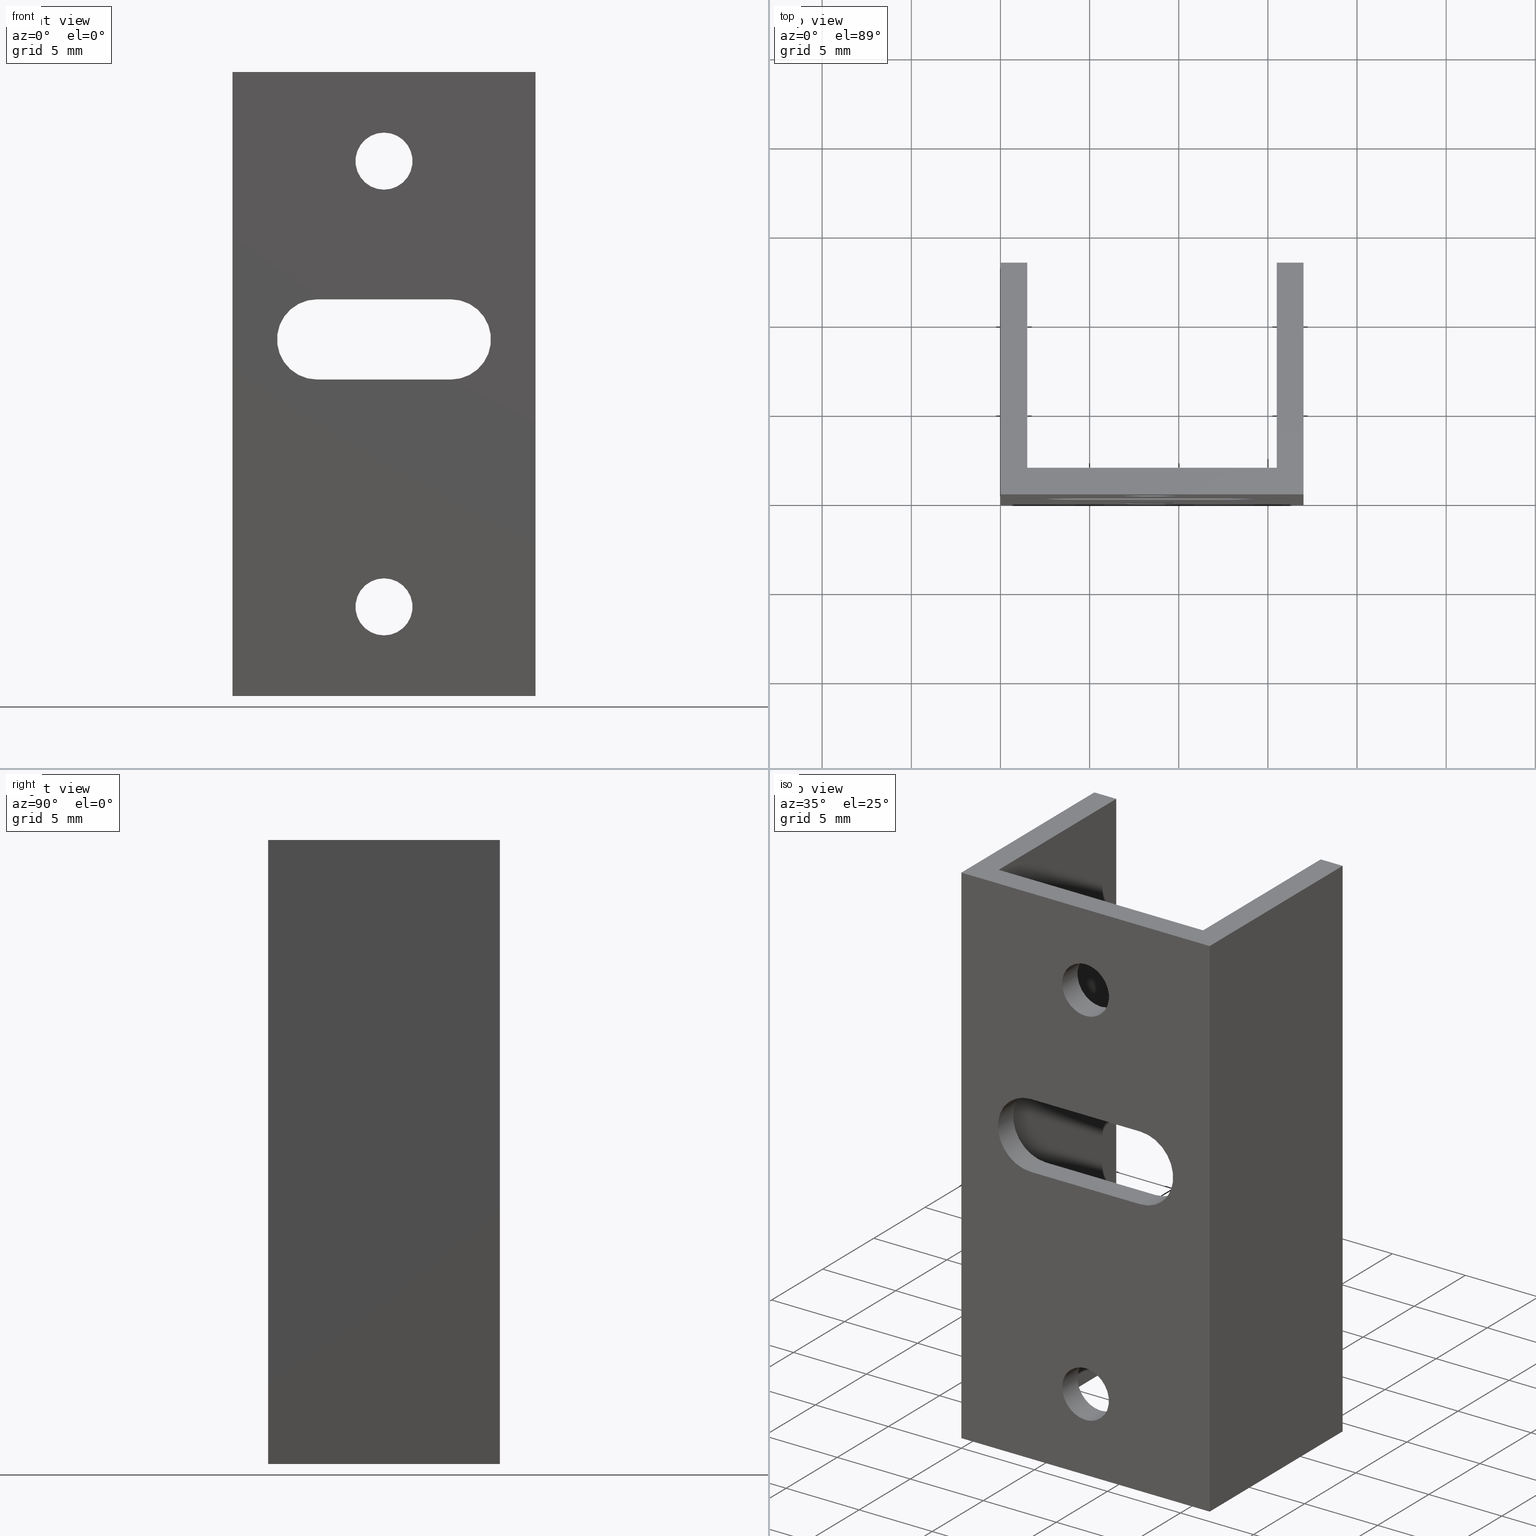
[diagram: canonical four-view strip — front | top / right | iso, engineering-drawing reading convention]
A machine part, canonical four-view strip (front | top / right | iso — engineering-drawing reading convention). The complete STEP part file that produces these views, byte-faithful:
ISO-10303-21;
HEADER;
FILE_DESCRIPTION (( 'STEP AP203' ),
    '1' );
FILE_NAME ('S14     PR17_35_II_SE.STEP',
    '2021-11-30T06:12:59',
    ( '' ),
    ( '' ),
    'SwSTEP 2.0',
    'SolidWorks 2020',
    '' );
FILE_SCHEMA (( 'CONFIG_CONTROL_DESIGN' ));
ENDSEC;

DATA;
#1 = CC_DESIGN_APPROVAL ( #126, ( #90 ) ) ;
#2 = FACE_OUTER_BOUND ( 'NONE', #33, .T. ) ;
#3 = EDGE_LOOP ( 'NONE', ( #182, #609, #254, #64 ) ) ;
#4 = CARTESIAN_POINT ( 'NONE',  ( 4.750000000000013323, 1.499999999999993783, -17.25000000000000000 ) ) ;
#5 = ORIENTED_EDGE ( 'NONE', *, *, #275, .T. ) ;
#6 = CC_DESIGN_PERSON_AND_ORGANIZATION_ASSIGNMENT ( #385, #238, ( #568 ) ) ;
#7 = APPROVAL_STATUS ( 'not_yet_approved' ) ;
#8 = DIRECTION ( 'NONE',  ( -1.000000000000000000, -0.0000000000000000000, -0.0000000000000000000 ) ) ;
#9 = ORIENTED_EDGE ( 'NONE', *, *, #382, .F. ) ;
#10 = ORGANIZATION ( 'UNSPECIFIED', 'UNSPECIFIED', '' ) ;
#11 = CARTESIAN_POINT ( 'NONE',  ( 12.25000000000001066, -6.288372600415925717E-15, -12.75000000000000178 ) ) ;
#12 = EDGE_CURVE ( 'NONE', #504, #408, #231, .T. ) ;
#13 = ORIENTED_EDGE ( 'NONE', *, *, #84, .T. ) ;
#14 = CALENDAR_DATE ( 2021, 30, 11 ) ;
#15 = CARTESIAN_POINT ( 'NONE',  ( 8.500000000000010658, -6.288372600415925717E-15, -30.00000000000000711 ) ) ;
#16 = ORIENTED_EDGE ( 'NONE', *, *, #154, .F. ) ;
#17 = CYLINDRICAL_SURFACE ( 'NONE', #272, 2.249999999999998668 ) ;
#18 = EDGE_CURVE ( 'NONE', #414, #139, #477, .T. ) ;
#19 = ORIENTED_EDGE ( 'NONE', *, *, #482, .F. ) ;
#20 = CARTESIAN_POINT ( 'NONE',  ( 8.500000000000010658, -6.288372600415925717E-15, -3.400000000000001243 ) ) ;
#21 = LOCAL_TIME ( 7, 12, 59.00000000000000000, #316 ) ;
#22 = MANIFOLD_SOLID_BREP ( 'Schnitt-Linear austragen1', #577 ) ;
#23 = DIRECTION ( 'NONE',  ( 0.0000000000000000000, 1.000000000000000000, 0.0000000000000000000 ) ) ;
#24 = DIRECTION ( 'NONE',  ( 1.000000000000000000, -1.260665822651691747E-17, -0.0000000000000000000 ) ) ;
#25 = CARTESIAN_POINT ( 'NONE',  ( 0.0000000000000000000, 0.0000000000000000000, -35.00000000000000000 ) ) ;
#26 = FACE_OUTER_BOUND ( 'NONE', #391, .T. ) ;
#27 = LINE ( 'NONE', #227, #631 ) ;
#28 = VERTEX_POINT ( 'NONE', #67 ) ;
#29 = FACE_OUTER_BOUND ( 'NONE', #305, .T. ) ;
#30 = PLANE ( 'NONE',  #651 ) ;
#31 = VERTEX_POINT ( 'NONE', #25 ) ;
#32 = PLANE ( 'NONE',  #223 ) ;
#33 = EDGE_LOOP ( 'NONE', ( #528, #91, #531, #54 ) ) ;
#34 = CARTESIAN_POINT ( 'NONE',  ( 8.500000000000010658, 1.499999999999993783, -3.400000000000000355 ) ) ;
#35 = ORIENTED_EDGE ( 'NONE', *, *, #482, .T. ) ;
#36 = PERSON_AND_ORGANIZATION ( #471, #10 ) ;
#37 = CIRCLE ( 'NONE', #412, 1.600000000000000755 ) ;
#38 = DIRECTION ( 'NONE',  ( -1.000000000000000000, -0.0000000000000000000, -0.0000000000000000000 ) ) ;
#39 = EDGE_LOOP ( 'NONE', ( #510, #47 ) ) ;
#40 = AXIS2_PLACEMENT_3D ( 'NONE', #449, #248, #438 ) ;
#41 = DIRECTION ( 'NONE',  ( 0.0000000000000000000, 0.0000000000000000000, 1.000000000000000000 ) ) ;
#42 = CARTESIAN_POINT ( 'NONE',  ( 8.500000000000010658, -6.288372600415925717E-15, -28.40000000000000924 ) ) ;
#43 = ORIENTED_EDGE ( 'NONE', *, *, #104, .F. ) ;
#44 = EDGE_CURVE ( 'NONE', #314, #475, #642, .T. ) ;
#45 = COORDINATED_UNIVERSAL_TIME_OFFSET ( 1, 0, .AHEAD. ) ;
#46 = CARTESIAN_POINT ( 'NONE',  ( 4.750000000000012434, -6.288372600415925717E-15, -12.75000000000000178 ) ) ;
#47 = ORIENTED_EDGE ( 'NONE', *, *, #382, .T. ) ;
#48 = CARTESIAN_POINT ( 'NONE',  ( 17.00000000000001066, 12.99999999999999822, -35.00000000000000000 ) ) ;
#49 = ADVANCED_FACE ( 'NONE', ( #423, #487, #233, #121 ), #436, .T. ) ;
#50 = CC_DESIGN_PERSON_AND_ORGANIZATION_ASSIGNMENT ( #511, #202, ( #90 ) ) ;
#51 = EDGE_LOOP ( 'NONE', ( #200, #108, #116, #5 ) ) ;
#52 = VECTOR ( 'NONE', #469, 1000.000000000000000 ) ;
#53 = LINE ( 'NONE', #463, #465 ) ;
#54 = ORIENTED_EDGE ( 'NONE', *, *, #424, .T. ) ;
#55 = PERSON_AND_ORGANIZATION ( #471, #10 ) ;
#56 = PLANE ( 'NONE',  #537 ) ;
#57 = VERTEX_POINT ( 'NONE', #282 ) ;
#58 = CALENDAR_DATE ( 2021, 30, 11 ) ;
#59 = CARTESIAN_POINT ( 'NONE',  ( 8.500000000000010658, 1.499999999999993561, -31.60000000000000142 ) ) ;
#60 = ORIENTED_EDGE ( 'NONE', *, *, #265, .T. ) ;
#61 = EDGE_CURVE ( 'NONE', #86, #31, #322, .T. ) ;
#62 = CARTESIAN_POINT ( 'NONE',  ( 1.499999999999996225, 12.99999999999999822, -35.00000000000000000 ) ) ;
#63 = VECTOR ( 'NONE', #635, 1000.000000000000000 ) ;
#64 = ORIENTED_EDGE ( 'NONE', *, *, #628, .T. ) ;
#65 = EDGE_CURVE ( 'NONE', #204, #411, #521, .T. ) ;
#66 = CARTESIAN_POINT ( 'NONE',  ( 12.25000000000001243, -6.288372600415925717E-15, -15.00000000000000000 ) ) ;
#67 = CARTESIAN_POINT ( 'NONE',  ( -3.184081677783117402E-15, 12.99999999999999822, 0.0000000000000000000 ) ) ;
#68 = AXIS2_PLACEMENT_3D ( 'NONE', #15, #153, #256 ) ;
#69 = DIRECTION ( 'NONE',  ( 0.0000000000000000000, 0.0000000000000000000, -1.000000000000000000 ) ) ;
#70 = EDGE_LOOP ( 'NONE', ( #118, #16, #353, #225 ) ) ;
#71 = DIRECTION ( 'NONE',  ( 0.0000000000000000000, 1.000000000000000000, 0.0000000000000000000 ) ) ;
#72 = DIRECTION ( 'NONE',  ( -1.260665822651691901E-17, -1.000000000000000000, 0.0000000000000000000 ) ) ;
#73 = AXIS2_PLACEMENT_3D ( 'NONE', #274, #23, #280 ) ;
#74 = LINE ( 'NONE', #333, #555 ) ;
#75 = DIRECTION ( 'NONE',  ( 1.000000000000000000, -1.260665822651691901E-17, 0.0000000000000000000 ) ) ;
#76 = CARTESIAN_POINT ( 'NONE',  ( 17.00000000000001066, 12.99999999999999822, -35.00000000000000000 ) ) ;
#77 = ORIENTED_EDGE ( 'NONE', *, *, #96, .F. ) ;
#78 = CARTESIAN_POINT ( 'NONE',  ( 12.25000000000001066, 1.499999999999993783, -17.25000000000000000 ) ) ;
#79 = LINE ( 'NONE', #489, #587 ) ;
#80 = EDGE_CURVE ( 'NONE', #98, #309, #583, .T. ) ;
#81 = CIRCLE ( 'NONE', #620, 1.600000000000000755 ) ;
#82 = LINE ( 'NONE', #300, #584 ) ;
#83 = VECTOR ( 'NONE', #124, 1000.000000000000000 ) ;
#84 = EDGE_CURVE ( 'NONE', #349, #646, #255, .T. ) ;
#85 = CARTESIAN_POINT ( 'NONE',  ( 15.50000000000002132, 1.499999999999993783, 0.0000000000000000000 ) ) ;
#86 = VERTEX_POINT ( 'NONE', #219 ) ;
#87 = AXIS2_PLACEMENT_3D ( 'NONE', #243, #88, #292 ) ;
#88 = DIRECTION ( 'NONE',  ( -0.0000000000000000000, 1.000000000000000000, -0.0000000000000000000 ) ) ;
#89 = CYLINDRICAL_SURFACE ( 'NONE', #40, 1.600000000000000755 ) ;
#90 = PRODUCT_DEFINITION_FORMATION_WITH_SPECIFIED_SOURCE ( 'ANY', '', #568, .NOT_KNOWN. ) ;
#91 = ORIENTED_EDGE ( 'NONE', *, *, #354, .F. ) ;
#92 = DIRECTION ( 'NONE',  ( -1.000000000000000000, 0.0000000000000000000, -0.0000000000000000000 ) ) ;
#93 = DIRECTION ( 'NONE',  ( 0.0000000000000000000, 0.0000000000000000000, 1.000000000000000000 ) ) ;
#94 = ORIENTED_EDGE ( 'NONE', *, *, #372, .F. ) ;
#95 = FACE_OUTER_BOUND ( 'NONE', #589, .T. ) ;
#96 = EDGE_CURVE ( 'NONE', #57, #331, #171, .T. ) ;
#97 = LINE ( 'NONE', #536, #191 ) ;
#98 = VERTEX_POINT ( 'NONE', #580 ) ;
#99 = PERSON_AND_ORGANIZATION ( #471, #10 ) ;
#100 = VECTOR ( 'NONE', #213, 1000.000000000000000 ) ;
#101 = DIRECTION ( 'NONE',  ( 0.0000000000000000000, 0.0000000000000000000, 1.000000000000000000 ) ) ;
#102 = ORIENTED_EDGE ( 'NONE', *, *, #61, .T. ) ;
#103 =( GEOMETRIC_REPRESENTATION_CONTEXT ( 3 ) GLOBAL_UNCERTAINTY_ASSIGNED_CONTEXT ( ( #542 ) ) GLOBAL_UNIT_ASSIGNED_CONTEXT ( ( #351, #289, #234 ) ) REPRESENTATION_CONTEXT ( 'NONE', 'WORKASPACE' ) );
#104 = EDGE_CURVE ( 'NONE', #517, #394, #27, .T. ) ;
#105 = APPROVAL_DATE_TIME ( #565, #523 ) ;
#106 = EDGE_CURVE ( 'NONE', #572, #349, #430, .T. ) ;
#107 = CARTESIAN_POINT ( 'NONE',  ( 17.00000000000001066, 12.99999999999999822, 0.0000000000000000000 ) ) ;
#108 = ORIENTED_EDGE ( 'NONE', *, *, #187, .F. ) ;
#109 = ADVANCED_FACE ( 'NONE', ( #177 ), #30, .T. ) ;
#110 = DATE_TIME_ROLE ( 'classification_date' ) ;
#111 = CIRCLE ( 'NONE', #393, 2.250000000000000444 ) ;
#112 = CARTESIAN_POINT ( 'NONE',  ( 0.0000000000000000000, 0.0000000000000000000, 0.0000000000000000000 ) ) ;
#113 = ORIENTED_EDGE ( 'NONE', *, *, #597, .F. ) ;
#114 = PERSON_AND_ORGANIZATION_ROLE ( 'classification_officer' ) ;
#115 = DIRECTION ( 'NONE',  ( 0.0000000000000000000, -0.0000000000000000000, 1.000000000000000000 ) ) ;
#116 = ORIENTED_EDGE ( 'NONE', *, *, #65, .T. ) ;
#117 = FACE_OUTER_BOUND ( 'NONE', #299, .T. ) ;
#118 = ORIENTED_EDGE ( 'NONE', *, *, #645, .F. ) ;
#119 = CIRCLE ( 'NONE', #442, 2.250000000000000444 ) ;
#120 = DIRECTION ( 'NONE',  ( -2.639796593877749262E-16, 1.000000000000000000, 0.0000000000000000000 ) ) ;
#121 = FACE_OUTER_BOUND ( 'NONE', #70, .T. ) ;
#122 = DIRECTION ( 'NONE',  ( 2.449293598294705921E-16, -1.000000000000000000, 0.0000000000000000000 ) ) ;
#123 = CC_DESIGN_PERSON_AND_ORGANIZATION_ASSIGNMENT ( #557, #163, ( #90 ) ) ;
#124 = DIRECTION ( 'NONE',  ( 0.0000000000000000000, 0.0000000000000000000, 1.000000000000000000 ) ) ;
#125 = PLANE ( 'NONE',  #350 ) ;
#126 = APPROVAL ( #7, 'UNSPECIFIED' ) ;
#127 = DIRECTION ( 'NONE',  ( -0.0000000000000000000, 1.000000000000000000, -0.0000000000000000000 ) ) ;
#128 = ADVANCED_FACE ( 'NONE', ( #539 ), #89, .F. ) ;
#129 = PLANE ( 'NONE',  #209 ) ;
#130 = CARTESIAN_POINT ( 'NONE',  ( 17.00000000000002132, -2.143131898507878898E-16, -35.00000000000000000 ) ) ;
#131 = VECTOR ( 'NONE', #376, 1000.000000000000000 ) ;
#132 = CARTESIAN_POINT ( 'NONE',  ( 4.750000000000013323, 1.499999999999993783, -15.00000000000000178 ) ) ;
#133 = ORIENTED_EDGE ( 'NONE', *, *, #44, .T. ) ;
#134 = EDGE_CURVE ( 'NONE', #517, #640, #298, .T. ) ;
#135 = CARTESIAN_POINT ( 'NONE',  ( 17.00000000000001066, 12.99999999999999822, 0.0000000000000000000 ) ) ;
#136 = DIRECTION ( 'NONE',  ( 7.542275982507853202E-16, -1.000000000000000000, -0.0000000000000000000 ) ) ;
#137 = DIRECTION ( 'NONE',  ( 0.0000000000000000000, 0.0000000000000000000, 1.000000000000000000 ) ) ;
#138 = DIRECTION ( 'NONE',  ( -0.0000000000000000000, 1.000000000000000000, -0.0000000000000000000 ) ) ;
#139 = VERTEX_POINT ( 'NONE', #339 ) ;
#140 = VECTOR ( 'NONE', #390, 1000.000000000000000 ) ;
#141 = ADVANCED_FACE ( 'NONE', ( #653, #396, #386, #2 ), #32, .T. ) ;
#142 = DIRECTION ( 'NONE',  ( -0.0000000000000000000, 1.000000000000000000, -0.0000000000000000000 ) ) ;
#143 = ORIENTED_EDGE ( 'NONE', *, *, #220, .F. ) ;
#144 = DIRECTION ( 'NONE',  ( -1.000000000000000000, 0.0000000000000000000, -0.0000000000000000000 ) ) ;
#145 = ORIENTED_EDGE ( 'NONE', *, *, #106, .F. ) ;
#146 = EDGE_CURVE ( 'NONE', #314, #236, #591, .T. ) ;
#147 = CARTESIAN_POINT ( 'NONE',  ( 0.0000000000000000000, 0.0000000000000000000, 0.0000000000000000000 ) ) ;
#148 = DIRECTION ( 'NONE',  ( 0.0000000000000000000, 0.0000000000000000000, 1.000000000000000000 ) ) ;
#149 = VERTEX_POINT ( 'NONE', #549 ) ;
#150 = DIRECTION ( 'NONE',  ( 1.000000000000000000, 8.006416042969880035E-16, -0.0000000000000000000 ) ) ;
#151 = ORIENTED_EDGE ( 'NONE', *, *, #273, .F. ) ;
#152 = EDGE_CURVE ( 'NONE', #266, #287, #235, .T. ) ;
#153 = DIRECTION ( 'NONE',  ( -0.0000000000000000000, 1.000000000000000000, -0.0000000000000000000 ) ) ;
#154 = EDGE_CURVE ( 'NONE', #31, #341, #337, .T. ) ;
#155 = ORIENTED_EDGE ( 'NONE', *, *, #645, .T. ) ;
#156 = CARTESIAN_POINT ( 'NONE',  ( 8.500000000000010658, 1.499999999999993783, -5.000000000000000000 ) ) ;
#157 = VECTOR ( 'NONE', #588, 1000.000000000000000 ) ;
#158 = EDGE_LOOP ( 'NONE', ( #606, #439, #406, #418 ) ) ;
#159 = COORDINATED_UNIVERSAL_TIME_OFFSET ( 1, 0, .AHEAD. ) ;
#160 = VECTOR ( 'NONE', #136, 1000.000000000000000 ) ;
#161 = CARTESIAN_POINT ( 'NONE',  ( 15.50000000000002132, 1.499999999999993783, 0.0000000000000000000 ) ) ;
#162 = ORIENTED_EDGE ( 'NONE', *, *, #451, .F. ) ;
#163 = PERSON_AND_ORGANIZATION_ROLE ( 'design_supplier' ) ;
#164 = DIRECTION ( 'NONE',  ( 0.0000000000000000000, 1.000000000000000000, 0.0000000000000000000 ) ) ;
#165 = EDGE_LOOP ( 'NONE', ( #19, #544, #443, #145 ) ) ;
#166 = CARTESIAN_POINT ( 'NONE',  ( 8.500000000000010658, 1.499999999999993561, -28.40000000000000568 ) ) ;
#167 = ORIENTED_EDGE ( 'NONE', *, *, #275, .F. ) ;
#168 = EDGE_CURVE ( 'NONE', #394, #266, #290, .T. ) ;
#169 = PLANE ( 'NONE',  #526 ) ;
#170 = AXIS2_PLACEMENT_3D ( 'NONE', #306, #203, #115 ) ;
#171 = LINE ( 'NONE', #481, #131 ) ;
#172 = EDGE_CURVE ( 'NONE', #86, #28, #97, .T. ) ;
#173 = DIRECTION ( 'NONE',  ( 0.0000000000000000000, 1.000000000000000000, 0.0000000000000000000 ) ) ;
#174 = CARTESIAN_POINT ( 'NONE',  ( 8.500000000000010658, -6.288372600415925717E-15, -5.000000000000000000 ) ) ;
#175 = CIRCLE ( 'NONE', #457, 1.599999999999998979 ) ;
#176 = DIRECTION ( 'NONE',  ( -0.0000000000000000000, 1.000000000000000000, -0.0000000000000000000 ) ) ;
#177 = FACE_OUTER_BOUND ( 'NONE', #612, .T. ) ;
#178 = AXIS2_PLACEMENT_3D ( 'NONE', #222, #69, #276 ) ;
#179 = DIRECTION ( 'NONE',  ( 7.542275982507853202E-16, -1.000000000000000000, 0.0000000000000000000 ) ) ;
#180 = EDGE_CURVE ( 'NONE', #394, #345, #604, .T. ) ;
#181 = DIRECTION ( 'NONE',  ( -0.0000000000000000000, 1.000000000000000000, -0.0000000000000000000 ) ) ;
#182 = ORIENTED_EDGE ( 'NONE', *, *, #285, .T. ) ;
#183 = CIRCLE ( 'NONE', #68, 1.599999999999997202 ) ;
#184 = DESIGN_CONTEXT ( 'detailed design', #622, 'design' ) ;
#185 = CARTESIAN_POINT ( 'NONE',  ( 15.50000000000001243, 12.99999999999999822, -35.00000000000000000 ) ) ;
#186 = ORIENTED_EDGE ( 'NONE', *, *, #641, .F. ) ;
#187 = EDGE_CURVE ( 'NONE', #204, #98, #246, .T. ) ;
#188 = LINE ( 'NONE', #247, #221 ) ;
#189 = CARTESIAN_POINT ( 'NONE',  ( 1.499999999999999112, 1.499999999999993783, -35.00000000000000000 ) ) ;
#190 = ORIENTED_EDGE ( 'NONE', *, *, #265, .F. ) ;
#191 = VECTOR ( 'NONE', #644, 1000.000000000000000 ) ;
#192 = LINE ( 'NONE', #232, #270 ) ;
#193 = DIRECTION ( 'NONE',  ( -0.0000000000000000000, 1.000000000000000000, -0.0000000000000000000 ) ) ;
#194 = ORIENTED_EDGE ( 'NONE', *, *, #104, .T. ) ;
#195 = MECHANICAL_CONTEXT ( 'NONE', #632, 'mechanical' ) ;
#196 = DIRECTION ( 'NONE',  ( 0.0000000000000000000, 0.0000000000000000000, 1.000000000000000000 ) ) ;
#197 = LOCAL_TIME ( 7, 12, 59.00000000000000000, #45 ) ;
#198 = EDGE_LOOP ( 'NONE', ( #493, #113 ) ) ;
#199 = LINE ( 'NONE', #615, #100 ) ;
#200 = ORIENTED_EDGE ( 'NONE', *, *, #80, .F. ) ;
#201 = ADVANCED_FACE ( 'NONE', ( #294 ), #499, .F. ) ;
#202 = PERSON_AND_ORGANIZATION_ROLE ( 'creator' ) ;
#203 = DIRECTION ( 'NONE',  ( 0.0000000000000000000, 1.000000000000000000, 0.0000000000000000000 ) ) ;
#204 = VERTEX_POINT ( 'NONE', #42 ) ;
#205 = FACE_OUTER_BOUND ( 'NONE', #541, .T. ) ;
#206 = ORIENTED_EDGE ( 'NONE', *, *, #180, .T. ) ;
#207 = APPROVAL_DATE_TIME ( #617, #288 ) ;
#208 = LINE ( 'NONE', #112, #595 ) ;
#209 = AXIS2_PLACEMENT_3D ( 'NONE', #590, #498, #434 ) ;
#210 = EDGE_LOOP ( 'NONE', ( #35, #143, #229, #624 ) ) ;
#211 = SHAPE_DEFINITION_REPRESENTATION ( #397, #551 ) ;
#212 = VECTOR ( 'NONE', #142, 1000.000000000000000 ) ;
#213 = DIRECTION ( 'NONE',  ( -1.000000000000000000, -0.0000000000000000000, -0.0000000000000000000 ) ) ;
#214 = VERTEX_POINT ( 'NONE', #492 ) ;
#215 = FACE_OUTER_BOUND ( 'NONE', #586, .T. ) ;
#216 = ORIENTED_EDGE ( 'NONE', *, *, #65, .F. ) ;
#217 = CARTESIAN_POINT ( 'NONE',  ( 1.499999999999996225, 12.99999999999999822, 0.0000000000000000000 ) ) ;
#218 = EDGE_CURVE ( 'NONE', #475, #214, #596, .T. ) ;
#219 = CARTESIAN_POINT ( 'NONE',  ( -3.184081677783117402E-15, 12.99999999999999822, -35.00000000000000000 ) ) ;
#220 = EDGE_CURVE ( 'NONE', #149, #572, #239, .T. ) ;
#221 = VECTOR ( 'NONE', #546, 1000.000000000000000 ) ;
#222 = CARTESIAN_POINT ( 'NONE',  ( 4.750000000000013323, -6.288372600415925717E-15, -17.25000000000000000 ) ) ;
#223 = AXIS2_PLACEMENT_3D ( 'NONE', #189, #656, #348 ) ;
#224 = ORIENTED_EDGE ( 'NONE', *, *, #338, .F. ) ;
#225 = ORIENTED_EDGE ( 'NONE', *, *, #18, .T. ) ;
#226 = CARTESIAN_POINT ( 'NONE',  ( 1.499999999999999112, 1.499999999999993783, 0.0000000000000000000 ) ) ;
#227 = CARTESIAN_POINT ( 'NONE',  ( 15.50000000000001243, 12.99999999999999822, -35.00000000000000000 ) ) ;
#228 = VECTOR ( 'NONE', #308, 1000.000000000000000 ) ;
#229 = ORIENTED_EDGE ( 'NONE', *, *, #285, .F. ) ;
#230 = CARTESIAN_POINT ( 'NONE',  ( 12.25000000000001243, -6.288372600415925717E-15, -15.00000000000000000 ) ) ;
#231 = LINE ( 'NONE', #576, #83 ) ;
#232 = CARTESIAN_POINT ( 'NONE',  ( 4.750000000000013323, -6.288372600415925717E-15, -17.25000000000000000 ) ) ;
#233 = FACE_BOUND ( 'NONE', #39, .T. ) ;
#234 =( NAMED_UNIT ( * ) SI_UNIT ( $, .STERADIAN. ) SOLID_ANGLE_UNIT ( ) );
#235 = LINE ( 'NONE', #85, #160 ) ;
#236 = VERTEX_POINT ( 'NONE', #251 ) ;
#237 = AXIS2_PLACEMENT_3D ( 'NONE', #156, #562, #432 ) ;
#238 = PERSON_AND_ORGANIZATION_ROLE ( 'design_owner' ) ;
#239 = LINE ( 'NONE', #46, #279 ) ;
#240 = ORIENTED_EDGE ( 'NONE', *, *, #269, .T. ) ;
#241 = CC_DESIGN_DATE_AND_TIME_ASSIGNMENT ( #416, #250, ( #494 ) ) ;
#242 = CIRCLE ( 'NONE', #327, 1.600000000000000755 ) ;
#243 = CARTESIAN_POINT ( 'NONE',  ( 8.500000000000010658, 1.499999999999993561, -5.000000000000000000 ) ) ;
#244 = CARTESIAN_POINT ( 'NONE',  ( 0.0000000000000000000, 0.0000000000000000000, -35.00000000000000000 ) ) ;
#245 = EDGE_LOOP ( 'NONE', ( #151, #567, #102, #258 ) ) ;
#246 = CIRCLE ( 'NONE', #564, 1.599999999999997202 ) ;
#247 = CARTESIAN_POINT ( 'NONE',  ( 17.00000000000002132, -2.143131898507878898E-16, 0.0000000000000000000 ) ) ;
#248 = DIRECTION ( 'NONE',  ( -0.0000000000000000000, 1.000000000000000000, -0.0000000000000000000 ) ) ;
#249 = ORIENTED_EDGE ( 'NONE', *, *, #429, .T. ) ;
#250 = DATE_TIME_ROLE ( 'creation_date' ) ;
#251 = CARTESIAN_POINT ( 'NONE',  ( 8.500000000000010658, 1.499999999999993561, -6.600000000000000533 ) ) ;
#252 = VERTEX_POINT ( 'NONE', #401 ) ;
#253 = DIRECTION ( 'NONE',  ( -8.006416042969880035E-16, 1.000000000000000000, 0.0000000000000000000 ) ) ;
#254 = ORIENTED_EDGE ( 'NONE', *, *, #451, .T. ) ;
#255 = CIRCLE ( 'NONE', #73, 2.249999999999998668 ) ;
#256 = DIRECTION ( 'NONE',  ( 0.0000000000000000000, 0.0000000000000000000, 1.000000000000000000 ) ) ;
#257 = VECTOR ( 'NONE', #328, 1000.000000000000000 ) ;
#258 = ORIENTED_EDGE ( 'NONE', *, *, #154, .T. ) ;
#259 = CALENDAR_DATE ( 2021, 30, 11 ) ;
#260 = DIRECTION ( 'NONE',  ( -0.0000000000000000000, 1.000000000000000000, -0.0000000000000000000 ) ) ;
#261 = ORIENTED_EDGE ( 'NONE', *, *, #220, .T. ) ;
#262 = PERSON_AND_ORGANIZATION_ROLE ( 'creator' ) ;
#263 = CARTESIAN_POINT ( 'NONE',  ( 8.500000000000010658, -6.288372600415925717E-15, -6.599999999999998757 ) ) ;
#264 = CIRCLE ( 'NONE', #87, 1.600000000000000755 ) ;
#265 = EDGE_CURVE ( 'NONE', #433, #408, #441, .T. ) ;
#266 = VERTEX_POINT ( 'NONE', #496 ) ;
#267 = DIRECTION ( 'NONE',  ( 1.000000000000000000, 0.0000000000000000000, -2.312964634635742957E-16 ) ) ;
#268 = ORIENTED_EDGE ( 'NONE', *, *, #152, .F. ) ;
#269 = EDGE_CURVE ( 'NONE', #287, #433, #79, .T. ) ;
#270 = VECTOR ( 'NONE', #336, 1000.000000000000000 ) ;
#271 = DIRECTION ( 'NONE',  ( 0.0000000000000000000, 0.0000000000000000000, 1.000000000000000000 ) ) ;
#272 = AXIS2_PLACEMENT_3D ( 'NONE', #66, #639, #329 ) ;
#273 = EDGE_CURVE ( 'NONE', #28, #341, #208, .T. ) ;
#274 = CARTESIAN_POINT ( 'NONE',  ( 12.25000000000001243, 1.499999999999993783, -15.00000000000000000 ) ) ;
#275 = EDGE_CURVE ( 'NONE', #411, #309, #81, .T. ) ;
#276 = DIRECTION ( 'NONE',  ( -1.000000000000000000, 0.0000000000000000000, -0.0000000000000000000 ) ) ;
#277 = ORIENTED_EDGE ( 'NONE', *, *, #338, .T. ) ;
#278 = CARTESIAN_POINT ( 'NONE',  ( 8.500000000000010658, 1.499999999999993561, -5.000000000000000000 ) ) ;
#279 = VECTOR ( 'NONE', #138, 1000.000000000000000 ) ;
#280 = DIRECTION ( 'NONE',  ( 0.0000000000000000000, 0.0000000000000000000, 1.000000000000000000 ) ) ;
#281 = DIRECTION ( 'NONE',  ( -1.000000000000000000, -0.0000000000000000000, -0.0000000000000000000 ) ) ;
#282 = CARTESIAN_POINT ( 'NONE',  ( 4.750000000000013323, -6.288372600415925717E-15, -17.25000000000000000 ) ) ;
#283 = LOCAL_TIME ( 7, 12, 59.00000000000000000, #453 ) ;
#284 = FACE_OUTER_BOUND ( 'NONE', #245, .T. ) ;
#285 = EDGE_CURVE ( 'NONE', #57, #149, #111, .T. ) ;
#286 = ORIENTED_EDGE ( 'NONE', *, *, #332, .F. ) ;
#287 = VERTEX_POINT ( 'NONE', #161 ) ;
#288 = APPROVAL ( #621, 'UNSPECIFIED' ) ;
#289 =( NAMED_UNIT ( * ) PLANE_ANGLE_UNIT ( ) SI_UNIT ( $, .RADIAN. ) );
#290 = LINE ( 'NONE', #185, #529 ) ;
#291 = ORIENTED_EDGE ( 'NONE', *, *, #424, .F. ) ;
#292 = DIRECTION ( 'NONE',  ( 0.0000000000000000000, 0.0000000000000000000, 1.000000000000000000 ) ) ;
#293 = ADVANCED_FACE ( 'NONE', ( #516 ), #570, .T. ) ;
#294 = FACE_OUTER_BOUND ( 'NONE', #158, .T. ) ;
#295 = ORIENTED_EDGE ( 'NONE', *, *, #387, .T. ) ;
#296 = DIRECTION ( 'NONE',  ( 1.000000000000000000, 0.0000000000000000000, 0.0000000000000000000 ) ) ;
#297 = CC_DESIGN_APPROVAL ( #523, ( #494 ) ) ;
#298 = LINE ( 'NONE', #601, #479 ) ;
#299 = EDGE_LOOP ( 'NONE', ( #357, #224, #431, #261 ) ) ;
#300 = CARTESIAN_POINT ( 'NONE',  ( 4.750000000000012434, -6.288372600415925717E-15, -12.75000000000000178 ) ) ;
#301 = DIRECTION ( 'NONE',  ( 0.0000000000000000000, 0.0000000000000000000, 1.000000000000000000 ) ) ;
#302 = EDGE_LOOP ( 'NONE', ( #190, #291, #467, #420 ) ) ;
#303 = VECTOR ( 'NONE', #352, 1000.000000000000000 ) ;
#304 = CARTESIAN_POINT ( 'NONE',  ( 15.50000000000002132, 1.499999999999993783, -35.00000000000000000 ) ) ;
#305 = EDGE_LOOP ( 'NONE', ( #13, #318, #162, #277 ) ) ;
#306 = CARTESIAN_POINT ( 'NONE',  ( -3.184081677783117402E-15, 12.99999999999999822, -35.00000000000000000 ) ) ;
#307 = EDGE_LOOP ( 'NONE', ( #602, #133 ) ) ;
#308 = DIRECTION ( 'NONE',  ( -8.006416042969880035E-16, 1.000000000000000000, -0.0000000000000000000 ) ) ;
#309 = VERTEX_POINT ( 'NONE', #59 ) ;
#310 = VECTOR ( 'NONE', #518, 1000.000000000000000 ) ;
#311 = APPROVAL_DATE_TIME ( #613, #126 ) ;
#312 = PRODUCT_RELATED_PRODUCT_CATEGORY ( 'detail', '', ( #568 ) ) ;
#313 = LINE ( 'NONE', #11, #340 ) ;
#314 = VERTEX_POINT ( 'NONE', #263 ) ;
#315 = ADVANCED_FACE ( 'NONE', ( #117 ), #56, .F. ) ;
#316 = COORDINATED_UNIVERSAL_TIME_OFFSET ( 1, 0, .AHEAD. ) ;
#317 = DIRECTION ( 'NONE',  ( -2.639796593877749262E-16, 1.000000000000000000, -0.0000000000000000000 ) ) ;
#318 = ORIENTED_EDGE ( 'NONE', *, *, #429, .F. ) ;
#319 = LINE ( 'NONE', #413, #330 ) ;
#320 = ORIENTED_EDGE ( 'NONE', *, *, #402, .T. ) ;
#321 = DIRECTION ( 'NONE',  ( -1.000000000000000000, -2.449293598294705921E-16, 0.0000000000000000000 ) ) ;
#322 = LINE ( 'NONE', #524, #63 ) ;
#323 = FACE_OUTER_BOUND ( 'NONE', #548, .T. ) ;
#324 = CARTESIAN_POINT ( 'NONE',  ( 8.500000000000010658, 1.499999999999993783, -31.60000000000000142 ) ) ;
#325 = AXIS2_PLACEMENT_3D ( 'NONE', #440, #137, #296 ) ;
#326 = CARTESIAN_POINT ( 'NONE',  ( 8.500000000000010658, 1.499999999999993561, -30.00000000000000711 ) ) ;
#327 = AXIS2_PLACEMENT_3D ( 'NONE', #326, #634, #527 ) ;
#328 = DIRECTION ( 'NONE',  ( 0.0000000000000000000, 0.0000000000000000000, 1.000000000000000000 ) ) ;
#329 = DIRECTION ( 'NONE',  ( 0.0000000000000000000, 0.0000000000000000000, 1.000000000000000000 ) ) ;
#330 = VECTOR ( 'NONE', #559, 1000.000000000000000 ) ;
#331 = VERTEX_POINT ( 'NONE', #417 ) ;
#332 = EDGE_CURVE ( 'NONE', #640, #266, #319, .T. ) ;
#333 = CARTESIAN_POINT ( 'NONE',  ( 12.25000000000001066, -6.288372600415925717E-15, -17.25000000000000000 ) ) ;
#334 = ORIENTED_EDGE ( 'NONE', *, *, #435, .F. ) ;
#335 = SECURITY_CLASSIFICATION ( '', '', #362 ) ;
#336 = DIRECTION ( 'NONE',  ( -1.000000000000000000, -0.0000000000000000000, -0.0000000000000000000 ) ) ;
#337 = LINE ( 'NONE', #244, #303 ) ;
#338 = EDGE_CURVE ( 'NONE', #252, #349, #313, .T. ) ;
#339 = CARTESIAN_POINT ( 'NONE',  ( 17.00000000000002132, -2.143131898507878898E-16, 0.0000000000000000000 ) ) ;
#340 = VECTOR ( 'NONE', #405, 1000.000000000000000 ) ;
#341 = VERTEX_POINT ( 'NONE', #356 ) ;
#342 = AXIS2_PLACEMENT_3D ( 'NONE', #534, #72, #75 ) ;
#343 = DIRECTION ( 'NONE',  ( 0.0000000000000000000, 0.0000000000000000000, 1.000000000000000000 ) ) ;
#344 = CARTESIAN_POINT ( 'NONE',  ( 1.499999999999996225, 12.99999999999999822, 0.0000000000000000000 ) ) ;
#345 = VERTEX_POINT ( 'NONE', #359 ) ;
#346 = DIRECTION ( 'NONE',  ( 1.000000000000000000, 0.0000000000000000000, -2.312964634635743450E-16 ) ) ;
#347 = LOCAL_TIME ( 7, 12, 59.00000000000000000, #159 ) ;
#348 = DIRECTION ( 'NONE',  ( 0.0000000000000000000, -0.0000000000000000000, 1.000000000000000000 ) ) ;
#349 = VERTEX_POINT ( 'NONE', #407 ) ;
#350 = AXIS2_PLACEMENT_3D ( 'NONE', #484, #380, #179 ) ;
#351 =( LENGTH_UNIT ( ) NAMED_UNIT ( * ) SI_UNIT ( .MILLI., .METRE. ) );
#352 = DIRECTION ( 'NONE',  ( 0.0000000000000000000, 0.0000000000000000000, 1.000000000000000000 ) ) ;
#353 = ORIENTED_EDGE ( 'NONE', *, *, #435, .T. ) ;
#354 = EDGE_CURVE ( 'NONE', #345, #287, #506, .T. ) ;
#355 = CALENDAR_DATE ( 2021, 30, 11 ) ;
#356 = CARTESIAN_POINT ( 'NONE',  ( 0.0000000000000000000, 0.0000000000000000000, 0.0000000000000000000 ) ) ;
#357 = ORIENTED_EDGE ( 'NONE', *, *, #106, .T. ) ;
#358 = ADVANCED_FACE ( 'NONE', ( #368 ), #566, .T. ) ;
#359 = CARTESIAN_POINT ( 'NONE',  ( 15.50000000000002132, 1.499999999999993783, -35.00000000000000000 ) ) ;
#360 = ORIENTED_EDGE ( 'NONE', *, *, #80, .T. ) ;
#361 = AXIS2_PLACEMENT_3D ( 'NONE', #575, #581, #120 ) ;
#362 = SECURITY_CLASSIFICATION_LEVEL ( 'unclassified' ) ;
#363 = LINE ( 'NONE', #62, #378 ) ;
#364 = ORIENTED_EDGE ( 'NONE', *, *, #168, .T. ) ;
#365 = EDGE_CURVE ( 'NONE', #646, #331, #459, .T. ) ;
#366 = VECTOR ( 'NONE', #127, 1000.000000000000000 ) ;
#367 = APPROVAL_ROLE ( '' ) ;
#368 = FACE_OUTER_BOUND ( 'NONE', #619, .T. ) ;
#369 = ORIENTED_EDGE ( 'NONE', *, *, #569, .T. ) ;
#370 = CARTESIAN_POINT ( 'NONE',  ( 4.750000000000013323, -6.288372600415925717E-15, -15.00000000000000178 ) ) ;
#371 = VERTEX_POINT ( 'NONE', #608 ) ;
#372 = EDGE_CURVE ( 'NONE', #513, #504, #363, .T. ) ;
#373 = CARTESIAN_POINT ( 'NONE',  ( 17.00000000000002132, -2.143131898507878898E-16, -35.00000000000000000 ) ) ;
#374 = ORIENTED_EDGE ( 'NONE', *, *, #388, .F. ) ;
#375 = CARTESIAN_POINT ( 'NONE',  ( 0.0000000000000000000, 0.0000000000000000000, -35.00000000000000000 ) ) ;
#376 = DIRECTION ( 'NONE',  ( -0.0000000000000000000, 1.000000000000000000, -0.0000000000000000000 ) ) ;
#377 = LINE ( 'NONE', #520, #157 ) ;
#378 = VECTOR ( 'NONE', #317, 1000.000000000000000 ) ;
#379 = DIRECTION ( 'NONE',  ( -0.0000000000000000000, 1.000000000000000000, -0.0000000000000000000 ) ) ;
#380 = DIRECTION ( 'NONE',  ( -1.000000000000000000, -7.542275982507853202E-16, 0.0000000000000000000 ) ) ;
#381 = CARTESIAN_POINT ( 'NONE',  ( 4.750000000000012434, 1.499999999999993783, -12.75000000000000178 ) ) ;
#382 = EDGE_CURVE ( 'NONE', #98, #204, #183, .T. ) ;
#383 = CARTESIAN_POINT ( 'NONE',  ( 1.499999999999996225, 12.99999999999999822, -35.00000000000000000 ) ) ;
#384 = ORIENTED_EDGE ( 'NONE', *, *, #387, .F. ) ;
#385 = PERSON_AND_ORGANIZATION ( #471, #10 ) ;
#386 = FACE_BOUND ( 'NONE', #519, .T. ) ;
#387 = EDGE_CURVE ( 'NONE', #408, #28, #199, .T. ) ;
#388 = EDGE_CURVE ( 'NONE', #139, #640, #554, .T. ) ;
#389 = DIRECTION ( 'NONE',  ( -0.0000000000000000000, 1.000000000000000000, -0.0000000000000000000 ) ) ;
#390 = DIRECTION ( 'NONE',  ( -0.0000000000000000000, 1.000000000000000000, -0.0000000000000000000 ) ) ;
#391 = EDGE_LOOP ( 'NONE', ( #286, #657, #194, #364 ) ) ;
#392 = DIRECTION ( 'NONE',  ( 7.542275982507853202E-16, -1.000000000000000000, -0.0000000000000000000 ) ) ;
#393 = AXIS2_PLACEMENT_3D ( 'NONE', #370, #164, #101 ) ;
#394 = VERTEX_POINT ( 'NONE', #508 ) ;
#395 = CYLINDRICAL_SURFACE ( 'NONE', #483, 1.600000000000000755 ) ;
#396 = FACE_BOUND ( 'NONE', #198, .T. ) ;
#397 = PRODUCT_DEFINITION_SHAPE ( 'NONE', 'NONE',  #494 ) ;
#398 = ORIENTED_EDGE ( 'NONE', *, *, #332, .T. ) ;
#399 = VECTOR ( 'NONE', #271, 1000.000000000000000 ) ;
#400 = CARTESIAN_POINT ( 'NONE',  ( 8.500000000000010658, 1.499999999999993783, -30.00000000000000711 ) ) ;
#401 = CARTESIAN_POINT ( 'NONE',  ( 12.25000000000001066, -1.544315632748324108E-16, -12.75000000000000178 ) ) ;
#402 = EDGE_CURVE ( 'NONE', #504, #86, #53, .T. ) ;
#403 = ORIENTED_EDGE ( 'NONE', *, *, #552, .F. ) ;
#404 = ADVANCED_FACE ( 'NONE', ( #205 ), #410, .F. ) ;
#405 = DIRECTION ( 'NONE',  ( -0.0000000000000000000, 1.000000000000000000, -0.0000000000000000000 ) ) ;
#406 = ORIENTED_EDGE ( 'NONE', *, *, #597, .T. ) ;
#407 = CARTESIAN_POINT ( 'NONE',  ( 12.25000000000001066, 1.499999999999993783, -12.75000000000000178 ) ) ;
#408 = VERTEX_POINT ( 'NONE', #217 ) ;
#409 = ADVANCED_FACE ( 'NONE', ( #29 ), #17, .F. ) ;
#410 = CYLINDRICAL_SURFACE ( 'NONE', #237, 1.599999999999999867 ) ;
#411 = VERTEX_POINT ( 'NONE', #166 ) ;
#412 = AXIS2_PLACEMENT_3D ( 'NONE', #278, #176, #480 ) ;
#413 = CARTESIAN_POINT ( 'NONE',  ( 15.50000000000001243, 12.99999999999999822, 0.0000000000000000000 ) ) ;
#414 = VERTEX_POINT ( 'NONE', #578 ) ;
#415 = AXIS2_PLACEMENT_3D ( 'NONE', #503, #454, #196 ) ;
#416 = DATE_AND_TIME ( #502, #571 ) ;
#417 = CARTESIAN_POINT ( 'NONE',  ( 4.750000000000013323, 1.499999999999993783, -17.25000000000000000 ) ) ;
#418 = ORIENTED_EDGE ( 'NONE', *, *, #218, .F. ) ;
#419 = FACE_OUTER_BOUND ( 'NONE', #302, .T. ) ;
#420 = ORIENTED_EDGE ( 'NONE', *, *, #12, .T. ) ;
#421 = APPROVAL_PERSON_ORGANIZATION ( #55, #288, #468 ) ;
#422 = DIRECTION ( 'NONE',  ( 0.0000000000000000000, 0.0000000000000000000, 1.000000000000000000 ) ) ;
#423 = FACE_BOUND ( 'NONE', #3, .T. ) ;
#424 = EDGE_CURVE ( 'NONE', #513, #433, #476, .T. ) ;
#425 = AXIS2_PLACEMENT_3D ( 'NONE', #48, #150, #253 ) ;
#426 = CARTESIAN_POINT ( 'NONE',  ( 1.499999999999999112, 1.499999999999993783, -35.00000000000000000 ) ) ;
#427 = DIRECTION ( 'NONE',  ( 0.0000000000000000000, 0.0000000000000000000, 1.000000000000000000 ) ) ;
#428 = LINE ( 'NONE', #373, #625 ) ;
#429 = EDGE_CURVE ( 'NONE', #371, #646, #74, .T. ) ;
#430 = LINE ( 'NONE', #381, #446 ) ;
#431 = ORIENTED_EDGE ( 'NONE', *, *, #594, .F. ) ;
#432 = DIRECTION ( 'NONE',  ( 0.0000000000000000000, 0.0000000000000000000, 1.000000000000000000 ) ) ;
#433 = VERTEX_POINT ( 'NONE', #226 ) ;
#434 = DIRECTION ( 'NONE',  ( 0.0000000000000000000, -0.0000000000000000000, 1.000000000000000000 ) ) ;
#435 = EDGE_CURVE ( 'NONE', #31, #414, #428, .T. ) ;
#436 = PLANE ( 'NONE',  #342 ) ;
#437 = FACE_OUTER_BOUND ( 'NONE', #593, .T. ) ;
#438 = DIRECTION ( 'NONE',  ( 0.0000000000000000000, 0.0000000000000000000, 1.000000000000000000 ) ) ;
#439 = ORIENTED_EDGE ( 'NONE', *, *, #146, .T. ) ;
#440 = CARTESIAN_POINT ( 'NONE',  ( 0.0000000000000000000, 0.0000000000000000000, 0.0000000000000000000 ) ) ;
#441 = LINE ( 'NONE', #344, #461 ) ;
#442 = AXIS2_PLACEMENT_3D ( 'NONE', #132, #71, #422 ) ;
#443 = ORIENTED_EDGE ( 'NONE', *, *, #84, .F. ) ;
#444 = APPROVAL_STATUS ( 'not_yet_approved' ) ;
#445 = DIRECTION ( 'NONE',  ( 0.0000000000000000000, 0.0000000000000000000, -1.000000000000000000 ) ) ;
#446 = VECTOR ( 'NONE', #638, 1000.000000000000000 ) ;
#447 = ORIENTED_EDGE ( 'NONE', *, *, #172, .T. ) ;
#448 = DIRECTION ( 'NONE',  ( -0.0000000000000000000, 1.000000000000000000, -0.0000000000000000000 ) ) ;
#449 = CARTESIAN_POINT ( 'NONE',  ( 8.500000000000010658, 1.499999999999993783, -30.00000000000000711 ) ) ;
#450 = AXIS2_PLACEMENT_3D ( 'NONE', #147, #652, #92 ) ;
#451 = EDGE_CURVE ( 'NONE', #252, #371, #514, .T. ) ;
#452 = ORIENTED_EDGE ( 'NONE', *, *, #168, .F. ) ;
#453 = COORDINATED_UNIVERSAL_TIME_OFFSET ( 1, 0, .AHEAD. ) ;
#454 = DIRECTION ( 'NONE',  ( -0.0000000000000000000, 1.000000000000000000, -0.0000000000000000000 ) ) ;
#455 = ORIENTED_EDGE ( 'NONE', *, *, #462, .F. ) ;
#456 = COORDINATED_UNIVERSAL_TIME_OFFSET ( 1, 0, .AHEAD. ) ;
#457 = AXIS2_PLACEMENT_3D ( 'NONE', #491, #389, #535 ) ;
#458 = ADVANCED_FACE ( 'NONE', ( #419 ), #530, .T. ) ;
#459 = LINE ( 'NONE', #4, #310 ) ;
#460 = ORIENTED_EDGE ( 'NONE', *, *, #402, .F. ) ;
#461 = VECTOR ( 'NONE', #543, 1000.000000000000000 ) ;
#462 = EDGE_CURVE ( 'NONE', #345, #513, #629, .T. ) ;
#463 = CARTESIAN_POINT ( 'NONE',  ( -3.184081677783117402E-15, 12.99999999999999822, -35.00000000000000000 ) ) ;
#464 = ORIENTED_EDGE ( 'NONE', *, *, #152, .T. ) ;
#465 = VECTOR ( 'NONE', #8, 1000.000000000000000 ) ;
#466 = DIRECTION ( 'NONE',  ( 0.0000000000000000000, 0.0000000000000000000, 1.000000000000000000 ) ) ;
#467 = ORIENTED_EDGE ( 'NONE', *, *, #372, .T. ) ;
#468 = APPROVAL_ROLE ( '' ) ;
#469 = DIRECTION ( 'NONE',  ( 0.0000000000000000000, 0.0000000000000000000, 1.000000000000000000 ) ) ;
#470 = ORIENTED_EDGE ( 'NONE', *, *, #509, .T. ) ;
#471 = PERSON ( 'UNSPECIFIED', 'UNSPECIFIED', 'UNSPECIFIED', ('UNSPECIFIED'), ('UNSPECIFIED'), ('UNSPECIFIED') ) ;
#472 = CARTESIAN_POINT ( 'NONE',  ( 4.750000000000012434, -6.288372600415925717E-15, -12.75000000000000178 ) ) ;
#473 = ORIENTED_EDGE ( 'NONE', *, *, #552, .T. ) ;
#474 = DIRECTION ( 'NONE',  ( -0.0000000000000000000, 1.000000000000000000, -0.0000000000000000000 ) ) ;
#475 = VERTEX_POINT ( 'NONE', #20 ) ;
#476 = LINE ( 'NONE', #426, #399 ) ;
#477 = LINE ( 'NONE', #130, #257 ) ;
#478 = CC_DESIGN_PERSON_AND_ORGANIZATION_ASSIGNMENT ( #515, #262, ( #494 ) ) ;
#479 = VECTOR ( 'NONE', #148, 1000.000000000000000 ) ;
#480 = DIRECTION ( 'NONE',  ( 0.0000000000000000000, 0.0000000000000000000, 1.000000000000000000 ) ) ;
#481 = CARTESIAN_POINT ( 'NONE',  ( 4.750000000000013323, -6.288372600415925717E-15, -17.25000000000000000 ) ) ;
#482 = EDGE_CURVE ( 'NONE', #331, #572, #119, .T. ) ;
#483 = AXIS2_PLACEMENT_3D ( 'NONE', #400, #655, #41 ) ;
#484 = CARTESIAN_POINT ( 'NONE',  ( 15.50000000000002132, 1.499999999999993783, -35.00000000000000000 ) ) ;
#485 = DIRECTION ( 'NONE',  ( -1.000000000000000000, -0.0000000000000000000, -0.0000000000000000000 ) ) ;
#486 = FACE_OUTER_BOUND ( 'NONE', #210, .T. ) ;
#487 = FACE_BOUND ( 'NONE', #307, .T. ) ;
#488 = VECTOR ( 'NONE', #379, 1000.000000000000000 ) ;
#489 = CARTESIAN_POINT ( 'NONE',  ( 1.499999999999999112, 1.499999999999993783, 0.0000000000000000000 ) ) ;
#490 = ORIENTED_EDGE ( 'NONE', *, *, #509, .F. ) ;
#491 = CARTESIAN_POINT ( 'NONE',  ( 8.500000000000010658, -6.288372600415925717E-15, -5.000000000000000000 ) ) ;
#492 = CARTESIAN_POINT ( 'NONE',  ( 8.500000000000010658, 1.499999999999993561, -3.399999999999999467 ) ) ;
#493 = ORIENTED_EDGE ( 'NONE', *, *, #569, .F. ) ;
#494 = PRODUCT_DEFINITION ( 'UNKNOWN', '', #90, #184 ) ;
#495 = APPLICATION_PROTOCOL_DEFINITION ( 'international standard', 'config_control_design', 1994, #622 ) ;
#496 = CARTESIAN_POINT ( 'NONE',  ( 15.50000000000001243, 12.99999999999999822, 0.0000000000000000000 ) ) ;
#497 = ORIENTED_EDGE ( 'NONE', *, *, #628, .F. ) ;
#498 = DIRECTION ( 'NONE',  ( 0.0000000000000000000, 1.000000000000000000, 0.0000000000000000000 ) ) ;
#499 = CYLINDRICAL_SURFACE ( 'NONE', #415, 1.599999999999999867 ) ;
#500 = VECTOR ( 'NONE', #392, 1000.000000000000000 ) ;
#501 = ORIENTED_EDGE ( 'NONE', *, *, #218, .T. ) ;
#502 = CALENDAR_DATE ( 2021, 30, 11 ) ;
#503 = CARTESIAN_POINT ( 'NONE',  ( 8.500000000000010658, 1.499999999999993783, -5.000000000000000000 ) ) ;
#504 = VERTEX_POINT ( 'NONE', #383 ) ;
#505 = ADVANCED_FACE ( 'NONE', ( #215 ), #125, .T. ) ;
#506 = LINE ( 'NONE', #512, #52 ) ;
#507 = ORIENTED_EDGE ( 'NONE', *, *, #273, .T. ) ;
#508 = CARTESIAN_POINT ( 'NONE',  ( 15.50000000000001243, 12.99999999999999822, -35.00000000000000000 ) ) ;
#509 = EDGE_CURVE ( 'NONE', #414, #517, #377, .T. ) ;
#510 = ORIENTED_EDGE ( 'NONE', *, *, #187, .T. ) ;
#511 = PERSON_AND_ORGANIZATION ( #471, #10 ) ;
#512 = CARTESIAN_POINT ( 'NONE',  ( 15.50000000000002132, 1.499999999999993783, -35.00000000000000000 ) ) ;
#513 = VERTEX_POINT ( 'NONE', #533 ) ;
#514 = CIRCLE ( 'NONE', #600, 2.249999999999998668 ) ;
#515 = PERSON_AND_ORGANIZATION ( #471, #10 ) ;
#516 = FACE_OUTER_BOUND ( 'NONE', #550, .T. ) ;
#517 = VERTEX_POINT ( 'NONE', #76 ) ;
#518 = DIRECTION ( 'NONE',  ( -1.000000000000000000, -0.0000000000000000000, -0.0000000000000000000 ) ) ;
#519 = EDGE_LOOP ( 'NONE', ( #167, #403 ) ) ;
#520 = CARTESIAN_POINT ( 'NONE',  ( 17.00000000000001066, 12.99999999999999822, -35.00000000000000000 ) ) ;
#521 = LINE ( 'NONE', #630, #488 ) ;
#522 = PLANE ( 'NONE',  #178 ) ;
#523 = APPROVAL ( #444, 'UNSPECIFIED' ) ;
#524 = CARTESIAN_POINT ( 'NONE',  ( 0.0000000000000000000, 0.0000000000000000000, -35.00000000000000000 ) ) ;
#525 = APPROVAL_PERSON_ORGANIZATION ( #561, #126, #367 ) ;
#526 = AXIS2_PLACEMENT_3D ( 'NONE', #375, #321, #122 ) ;
#527 = DIRECTION ( 'NONE',  ( 0.0000000000000000000, 0.0000000000000000000, 1.000000000000000000 ) ) ;
#528 = ORIENTED_EDGE ( 'NONE', *, *, #269, .F. ) ;
#529 = VECTOR ( 'NONE', #301, 1000.000000000000000 ) ;
#530 = PLANE ( 'NONE',  #361 ) ;
#531 = ORIENTED_EDGE ( 'NONE', *, *, #462, .T. ) ;
#532 = ADVANCED_FACE ( 'NONE', ( #284 ), #169, .T. ) ;
#533 = CARTESIAN_POINT ( 'NONE',  ( 1.499999999999999112, 1.499999999999993783, -35.00000000000000000 ) ) ;
#534 = CARTESIAN_POINT ( 'NONE',  ( 17.00000000000002132, -2.143131898507878898E-16, -35.00000000000000000 ) ) ;
#535 = DIRECTION ( 'NONE',  ( 0.0000000000000000000, 0.0000000000000000000, 1.000000000000000000 ) ) ;
#536 = CARTESIAN_POINT ( 'NONE',  ( -3.184081677783117402E-15, 12.99999999999999822, -35.00000000000000000 ) ) ;
#537 = AXIS2_PLACEMENT_3D ( 'NONE', #472, #618, #267 ) ;
#538 = APPLICATION_PROTOCOL_DEFINITION ( 'international standard', 'config_control_design', 1994, #632 ) ;
#539 = FACE_OUTER_BOUND ( 'NONE', #51, .T. ) ;
#540 = CC_DESIGN_PERSON_AND_ORGANIZATION_ASSIGNMENT ( #99, #114, ( #335 ) ) ;
#541 = EDGE_LOOP ( 'NONE', ( #654, #186, #501, #369 ) ) ;
#542 = UNCERTAINTY_MEASURE_WITH_UNIT (LENGTH_MEASURE( 1.000000000000000082E-05 ), #351, 'distance_accuracy_value', 'NONE');
#543 = DIRECTION ( 'NONE',  ( -2.639796593877749262E-16, 1.000000000000000000, -0.0000000000000000000 ) ) ;
#544 = ORIENTED_EDGE ( 'NONE', *, *, #365, .F. ) ;
#545 = ADVANCED_FACE ( 'NONE', ( #323 ), #522, .F. ) ;
#546 = DIRECTION ( 'NONE',  ( 1.000000000000000000, -1.260665822651691747E-17, -0.0000000000000000000 ) ) ;
#547 = CARTESIAN_POINT ( 'NONE',  ( 8.500000000000010658, 1.499999999999993783, -6.599999999999999645 ) ) ;
#548 = EDGE_LOOP ( 'NONE', ( #627, #77, #497, #249 ) ) ;
#549 = CARTESIAN_POINT ( 'NONE',  ( 4.750000000000012434, -6.288372600415925717E-15, -12.75000000000000178 ) ) ;
#550 = EDGE_LOOP ( 'NONE', ( #384, #598, #320, #447 ) ) ;
#551 = ADVANCED_BREP_SHAPE_REPRESENTATION ( 'S14     PR17_35_II_SE', ( #22, #325 ), #103 ) ;
#552 = EDGE_CURVE ( 'NONE', #309, #411, #242, .T. ) ;
#553 = DATE_AND_TIME ( #58, #283 ) ;
#554 = LINE ( 'NONE', #107, #228 ) ;
#555 = VECTOR ( 'NONE', #474, 1000.000000000000000 ) ;
#556 = ORIENTED_EDGE ( 'NONE', *, *, #18, .F. ) ;
#557 = PERSON_AND_ORGANIZATION ( #471, #10 ) ;
#558 = CC_DESIGN_SECURITY_CLASSIFICATION ( #335, ( #90 ) ) ;
#559 = DIRECTION ( 'NONE',  ( -1.000000000000000000, -0.0000000000000000000, -0.0000000000000000000 ) ) ;
#560 = ORIENTED_EDGE ( 'NONE', *, *, #354, .T. ) ;
#561 = PERSON_AND_ORGANIZATION ( #471, #10 ) ;
#562 = DIRECTION ( 'NONE',  ( -0.0000000000000000000, 1.000000000000000000, -0.0000000000000000000 ) ) ;
#563 = ORIENTED_EDGE ( 'NONE', *, *, #180, .F. ) ;
#564 = AXIS2_PLACEMENT_3D ( 'NONE', #592, #193, #93 ) ;
#565 = DATE_AND_TIME ( #259, #197 ) ;
#566 = PLANE ( 'NONE',  #425 ) ;
#567 = ORIENTED_EDGE ( 'NONE', *, *, #172, .F. ) ;
#568 = PRODUCT ( 'S14     PR17_35_II_SE', 'S14     PR17_35_II_SE', '', ( #195 ) ) ;
#569 = EDGE_CURVE ( 'NONE', #214, #236, #37, .T. ) ;
#570 = PLANE ( 'NONE',  #170 ) ;
#571 = LOCAL_TIME ( 7, 12, 59.00000000000000000, #456 ) ;
#572 = VERTEX_POINT ( 'NONE', #585 ) ;
#573 = CC_DESIGN_DATE_AND_TIME_ASSIGNMENT ( #553, #110, ( #335 ) ) ;
#574 = VECTOR ( 'NONE', #281, 1000.000000000000000 ) ;
#575 = CARTESIAN_POINT ( 'NONE',  ( 1.499999999999996225, 12.99999999999999822, -35.00000000000000000 ) ) ;
#576 = CARTESIAN_POINT ( 'NONE',  ( 1.499999999999996225, 12.99999999999999822, -35.00000000000000000 ) ) ;
#577 = CLOSED_SHELL ( 'NONE', ( #201, #610, #49, #532, #293, #458, #141, #505, #579, #358, #109, #605, #128, #404, #647, #545, #409, #315 ) ) ;
#578 = CARTESIAN_POINT ( 'NONE',  ( 17.00000000000002132, -2.143131898507878898E-16, -35.00000000000000000 ) ) ;
#579 = ADVANCED_FACE ( 'NONE', ( #26 ), #129, .T. ) ;
#580 = CARTESIAN_POINT ( 'NONE',  ( 8.500000000000010658, -6.288372600415925717E-15, -31.60000000000000142 ) ) ;
#581 = DIRECTION ( 'NONE',  ( 1.000000000000000000, 2.639796593877749262E-16, -0.0000000000000000000 ) ) ;
#582 = AXIS2_PLACEMENT_3D ( 'NONE', #603, #448, #343 ) ;
#583 = LINE ( 'NONE', #324, #366 ) ;
#584 = VECTOR ( 'NONE', #346, 1000.000000000000000 ) ;
#585 = CARTESIAN_POINT ( 'NONE',  ( 4.750000000000013323, 1.499999999999993783, -12.75000000000000178 ) ) ;
#586 = EDGE_LOOP ( 'NONE', ( #268, #452, #206, #560 ) ) ;
#587 = VECTOR ( 'NONE', #38, 1000.000000000000000 ) ;
#588 = DIRECTION ( 'NONE',  ( -8.006416042969880035E-16, 1.000000000000000000, -0.0000000000000000000 ) ) ;
#589 = EDGE_LOOP ( 'NONE', ( #9, #360, #473, #216 ) ) ;
#590 = CARTESIAN_POINT ( 'NONE',  ( 15.50000000000001243, 12.99999999999999822, -35.00000000000000000 ) ) ;
#591 = LINE ( 'NONE', #547, #140 ) ;
#592 = CARTESIAN_POINT ( 'NONE',  ( 8.500000000000010658, -6.288372600415925717E-15, -30.00000000000000711 ) ) ;
#593 = EDGE_LOOP ( 'NONE', ( #155, #650, #398, #464, #240, #60, #295, #507 ) ) ;
#594 = EDGE_CURVE ( 'NONE', #149, #252, #82, .T. ) ;
#595 = VECTOR ( 'NONE', #611, 1000.000000000000000 ) ;
#596 = LINE ( 'NONE', #34, #212 ) ;
#597 = EDGE_CURVE ( 'NONE', #236, #214, #264, .T. ) ;
#598 = ORIENTED_EDGE ( 'NONE', *, *, #12, .F. ) ;
#599 = CYLINDRICAL_SURFACE ( 'NONE', #582, 2.250000000000000444 ) ;
#600 = AXIS2_PLACEMENT_3D ( 'NONE', #230, #173, #636 ) ;
#601 = CARTESIAN_POINT ( 'NONE',  ( 17.00000000000001066, 12.99999999999999822, -35.00000000000000000 ) ) ;
#602 = ORIENTED_EDGE ( 'NONE', *, *, #641, .T. ) ;
#603 = CARTESIAN_POINT ( 'NONE',  ( 4.750000000000013323, -6.288372600415925717E-15, -15.00000000000000178 ) ) ;
#604 = LINE ( 'NONE', #304, #500 ) ;
#605 = ADVANCED_FACE ( 'NONE', ( #437 ), #648, .F. ) ;
#606 = ORIENTED_EDGE ( 'NONE', *, *, #44, .F. ) ;
#607 = APPROVAL_ROLE ( '' ) ;
#608 = CARTESIAN_POINT ( 'NONE',  ( 12.25000000000001066, -6.288372600415925717E-15, -17.25000000000000000 ) ) ;
#609 = ORIENTED_EDGE ( 'NONE', *, *, #594, .T. ) ;
#610 = ADVANCED_FACE ( 'NONE', ( #95 ), #395, .F. ) ;
#611 = DIRECTION ( 'NONE',  ( 2.449293598294705921E-16, -1.000000000000000000, -0.0000000000000000000 ) ) ;
#612 = EDGE_LOOP ( 'NONE', ( #334, #616, #460, #94, #455, #563, #43, #490 ) ) ;
#613 = DATE_AND_TIME ( #355, #347 ) ;
#614 = CC_DESIGN_APPROVAL ( #288, ( #335 ) ) ;
#615 = CARTESIAN_POINT ( 'NONE',  ( -3.184081677783117402E-15, 12.99999999999999822, 0.0000000000000000000 ) ) ;
#616 = ORIENTED_EDGE ( 'NONE', *, *, #61, .F. ) ;
#617 = DATE_AND_TIME ( #14, #21 ) ;
#618 = DIRECTION ( 'NONE',  ( 2.312964634635742957E-16, 0.0000000000000000000, 1.000000000000000000 ) ) ;
#619 = EDGE_LOOP ( 'NONE', ( #374, #556, #470, #643 ) ) ;
#620 = AXIS2_PLACEMENT_3D ( 'NONE', #623, #260, #466 ) ;
#621 = APPROVAL_STATUS ( 'not_yet_approved' ) ;
#622 = APPLICATION_CONTEXT ( 'configuration controlled 3d designs of mechanical parts and assemblies' ) ;
#623 = CARTESIAN_POINT ( 'NONE',  ( 8.500000000000010658, 1.499999999999993561, -30.00000000000000711 ) ) ;
#624 = ORIENTED_EDGE ( 'NONE', *, *, #96, .T. ) ;
#625 = VECTOR ( 'NONE', #24, 1000.000000000000000 ) ;
#626 = CARTESIAN_POINT ( 'NONE',  ( 1.499999999999999112, 1.499999999999993783, -35.00000000000000000 ) ) ;
#627 = ORIENTED_EDGE ( 'NONE', *, *, #365, .T. ) ;
#628 = EDGE_CURVE ( 'NONE', #371, #57, #192, .T. ) ;
#629 = LINE ( 'NONE', #626, #574 ) ;
#630 = CARTESIAN_POINT ( 'NONE',  ( 8.500000000000010658, 1.499999999999993783, -28.40000000000000568 ) ) ;
#631 = VECTOR ( 'NONE', #485, 1000.000000000000000 ) ;
#632 = APPLICATION_CONTEXT ( 'configuration controlled 3d designs of mechanical parts and assemblies' ) ;
#633 = AXIS2_PLACEMENT_3D ( 'NONE', #174, #181, #427 ) ;
#634 = DIRECTION ( 'NONE',  ( -0.0000000000000000000, 1.000000000000000000, -0.0000000000000000000 ) ) ;
#635 = DIRECTION ( 'NONE',  ( 2.449293598294705921E-16, -1.000000000000000000, -0.0000000000000000000 ) ) ;
#636 = DIRECTION ( 'NONE',  ( 0.0000000000000000000, 0.0000000000000000000, 1.000000000000000000 ) ) ;
#637 = APPROVAL_PERSON_ORGANIZATION ( #36, #523, #607 ) ;
#638 = DIRECTION ( 'NONE',  ( 1.000000000000000000, 0.0000000000000000000, -2.312964634635743450E-16 ) ) ;
#639 = DIRECTION ( 'NONE',  ( -0.0000000000000000000, 1.000000000000000000, -0.0000000000000000000 ) ) ;
#640 = VERTEX_POINT ( 'NONE', #135 ) ;
#641 = EDGE_CURVE ( 'NONE', #475, #314, #175, .T. ) ;
#642 = CIRCLE ( 'NONE', #633, 1.599999999999998979 ) ;
#643 = ORIENTED_EDGE ( 'NONE', *, *, #134, .T. ) ;
#644 = DIRECTION ( 'NONE',  ( 0.0000000000000000000, 0.0000000000000000000, 1.000000000000000000 ) ) ;
#645 = EDGE_CURVE ( 'NONE', #341, #139, #188, .T. ) ;
#646 = VERTEX_POINT ( 'NONE', #78 ) ;
#647 = ADVANCED_FACE ( 'NONE', ( #486 ), #599, .F. ) ;
#648 = PLANE ( 'NONE',  #450 ) ;
#649 = CARTESIAN_POINT ( 'NONE',  ( 0.0000000000000000000, 0.0000000000000000000, -35.00000000000000000 ) ) ;
#650 = ORIENTED_EDGE ( 'NONE', *, *, #388, .T. ) ;
#651 = AXIS2_PLACEMENT_3D ( 'NONE', #649, #445, #144 ) ;
#652 = DIRECTION ( 'NONE',  ( 0.0000000000000000000, 0.0000000000000000000, -1.000000000000000000 ) ) ;
#653 = FACE_BOUND ( 'NONE', #165, .T. ) ;
#654 = ORIENTED_EDGE ( 'NONE', *, *, #146, .F. ) ;
#655 = DIRECTION ( 'NONE',  ( -0.0000000000000000000, 1.000000000000000000, -0.0000000000000000000 ) ) ;
#656 = DIRECTION ( 'NONE',  ( 0.0000000000000000000, 1.000000000000000000, 0.0000000000000000000 ) ) ;
#657 = ORIENTED_EDGE ( 'NONE', *, *, #134, .F. ) ;
ENDSEC;
END-ISO-10303-21;
